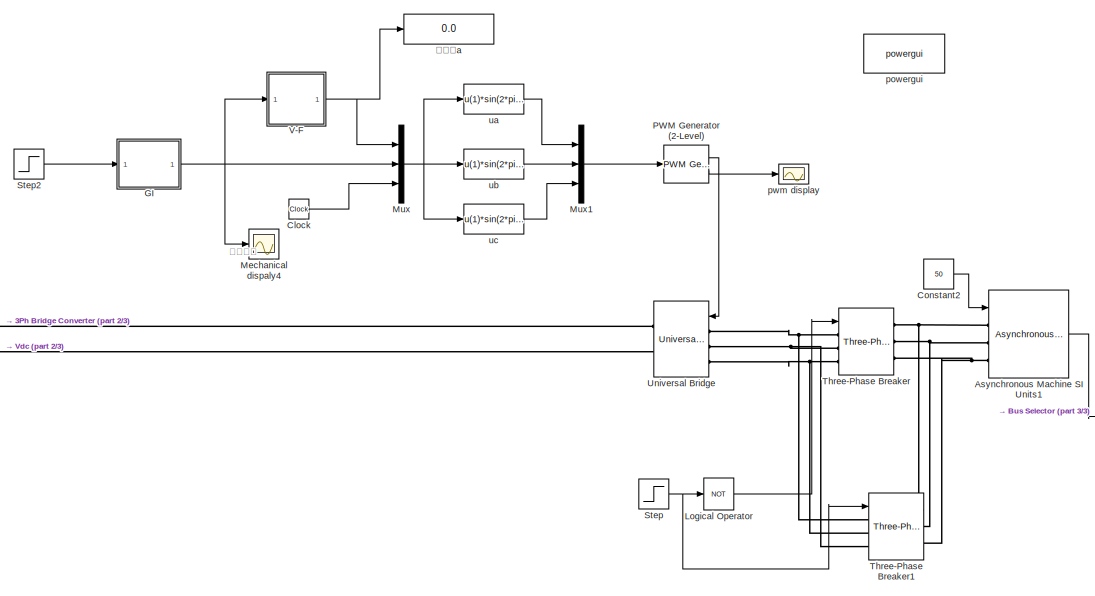
[diagram: root canvas - part 1/3, top center region]
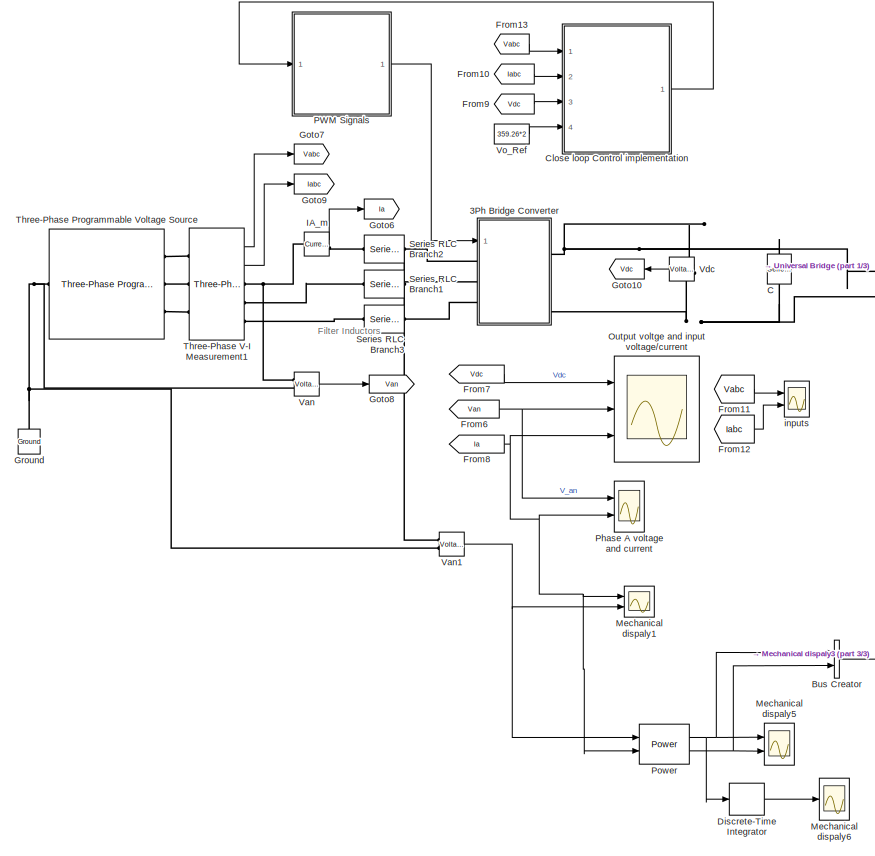
[diagram: root canvas - part 2/3, left side, full height]
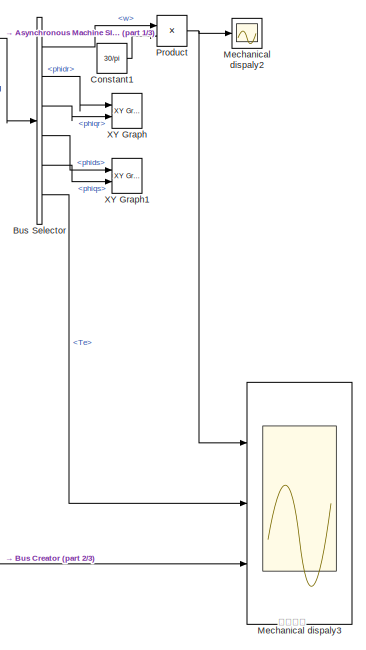
[diagram: root canvas - part 3/3, middle right region]
MODEL slx_5c9ccfc2b68f
KIND model
CONFIG AbsTol = auto
CONFIG EnableMultiTasking = off
CONFIG FixedStep = auto
CONFIG MaxStep = auto
CONFIG MinStep = auto
CONFIG RelTol = 1e-3
CONFIG SampleTimeConstraint = Unconstrained
CONFIG Solver = ode23t
CONFIG SolverName = ode23t
CONFIG StartTime = 0.0
CONFIG StopTime = 3
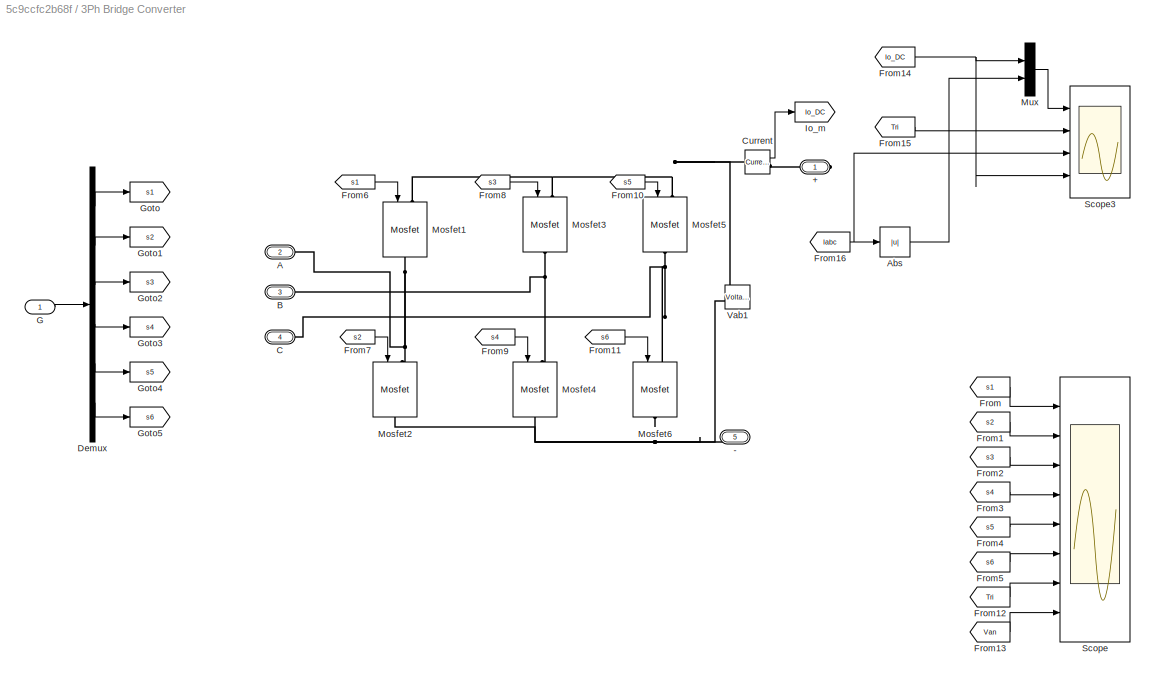
BLOCK [SubSystem] 3Ph Bridge Converter
  Ports = [1, 0, 0, 0, 0, 3, 2]
  RequestExecContextInheritance = off
  Variant = off
BLOCK [PMIOPort] 3Ph Bridge Converter/+
  Port = 1
  Side = Right
BLOCK [PMIOPort] 3Ph Bridge Converter/-
  Port = 5
  Side = Right
BLOCK [PMIOPort] 3Ph Bridge Converter/A
  Port = 2
  Side = Left
BLOCK [Abs] 3Ph Bridge Converter/Abs
  SaturateOnIntegerOverflow = off
BLOCK [PMIOPort] 3Ph Bridge Converter/B
  Port = 3
  Side = Left
BLOCK [PMIOPort] 3Ph Bridge Converter/C
  Port = 4
  Side = Left
BLOCK [Reference] 3Ph Bridge Converter/Current  REF=powerlib/Measurements/Current Measurement
  Ports = [0, 1, 0, 0, 0, 1, 1]
  SourceBlock = powerlib/Measurements/Current Measurement
  SourceProductBaseCode = PS
  SourceProductName = Simscape Power Systems
  SourceType = Current Measurement
BLOCK [Demux] 3Ph Bridge Converter/Demux
  DisplayOption = bar
  Outputs = 6
  Ports = [1, 6]
BLOCK [From] 3Ph Bridge Converter/From
  GotoTag = s1
BLOCK [From] 3Ph Bridge Converter/From1
  GotoTag = s2
BLOCK [From] 3Ph Bridge Converter/From10
  CloseFcn = tagdialog Close
  GotoTag = s5
BLOCK [From] 3Ph Bridge Converter/From11
  CloseFcn = tagdialog Close
  GotoTag = s6
BLOCK [From] 3Ph Bridge Converter/From12
  GotoTag = Tri
  TagVisibility = global
BLOCK [From] 3Ph Bridge Converter/From13
  GotoTag = Van
  TagVisibility = global
BLOCK [From] 3Ph Bridge Converter/From14
  GotoTag = Io_DC
BLOCK [From] 3Ph Bridge Converter/From15
  GotoTag = Tri
  TagVisibility = global
BLOCK [From] 3Ph Bridge Converter/From16
  GotoTag = Iabc
  TagVisibility = global
BLOCK [From] 3Ph Bridge Converter/From2
  GotoTag = s3
BLOCK [From] 3Ph Bridge Converter/From3
  GotoTag = s4
BLOCK [From] 3Ph Bridge Converter/From4
  GotoTag = s5
BLOCK [From] 3Ph Bridge Converter/From5
  GotoTag = s6
BLOCK [From] 3Ph Bridge Converter/From6
  CloseFcn = tagdialog Close
  GotoTag = s1
BLOCK [From] 3Ph Bridge Converter/From7
  CloseFcn = tagdialog Close
  GotoTag = s2
BLOCK [From] 3Ph Bridge Converter/From8
  CloseFcn = tagdialog Close
  GotoTag = s3
BLOCK [From] 3Ph Bridge Converter/From9
  CloseFcn = tagdialog Close
  GotoTag = s4
BLOCK [Inport] 3Ph Bridge Converter/G
  IconDisplay = Port number
BLOCK [Goto] 3Ph Bridge Converter/Goto
  GotoTag = s1
BLOCK [Goto] 3Ph Bridge Converter/Goto1
  GotoTag = s2
BLOCK [Goto] 3Ph Bridge Converter/Goto2
  GotoTag = s3
BLOCK [Goto] 3Ph Bridge Converter/Goto3
  GotoTag = s4
BLOCK [Goto] 3Ph Bridge Converter/Goto4
  GotoTag = s5
BLOCK [Goto] 3Ph Bridge Converter/Goto5
  GotoTag = s6
BLOCK [Goto] 3Ph Bridge Converter/Io_m
  GotoTag = Io_DC
BLOCK [Reference] 3Ph Bridge Converter/Mosfet1  REF=powerlib/Power
Electronics/Mosfet
  Ports = [1, 0, 0, 0, 0, 1, 1]
  SourceBlock = powerlib/Power\nElectronics/Mosfet
  SourceProductBaseCode = PS
  SourceProductName = Simscape Power Systems
  SourceType = Mosfet
BLOCK [Reference] 3Ph Bridge Converter/Mosfet2  REF=powerlib/Power
Electronics/Mosfet
  Ports = [1, 0, 0, 0, 0, 1, 1]
  SourceBlock = powerlib/Power\nElectronics/Mosfet
  SourceProductBaseCode = PS
  SourceProductName = Simscape Power Systems
  SourceType = Mosfet
BLOCK [Reference] 3Ph Bridge Converter/Mosfet3  REF=powerlib/Power
Electronics/Mosfet
  Ports = [1, 0, 0, 0, 0, 1, 1]
  SourceBlock = powerlib/Power\nElectronics/Mosfet
  SourceProductBaseCode = PS
  SourceProductName = Simscape Power Systems
  SourceType = Mosfet
BLOCK [Reference] 3Ph Bridge Converter/Mosfet4  REF=powerlib/Power
Electronics/Mosfet
  Ports = [1, 0, 0, 0, 0, 1, 1]
  SourceBlock = powerlib/Power\nElectronics/Mosfet
  SourceProductBaseCode = PS
  SourceProductName = Simscape Power Systems
  SourceType = Mosfet
BLOCK [Reference] 3Ph Bridge Converter/Mosfet5  REF=powerlib/Power
Electronics/Mosfet
  Ports = [1, 0, 0, 0, 0, 1, 1]
  SourceBlock = powerlib/Power\nElectronics/Mosfet
  SourceProductBaseCode = PS
  SourceProductName = Simscape Power Systems
  SourceType = Mosfet
BLOCK [Reference] 3Ph Bridge Converter/Mosfet6  REF=powerlib/Power
Electronics/Mosfet
  Ports = [1, 0, 0, 0, 0, 1, 1]
  SourceBlock = powerlib/Power\nElectronics/Mosfet
  SourceProductBaseCode = PS
  SourceProductName = Simscape Power Systems
  SourceType = Mosfet
BLOCK [Mux] 3Ph Bridge Converter/Mux
  DisplayOption = bar
  Inputs = 2
  Ports = [2, 1]
BLOCK [Scope] 3Ph Bridge Converter/Scope
  NumInputPorts = 8
  Ports = [8]
  ScopeSpecificationString = Simulink.scopes.TimeScopeBlockCfg('CurrentConfiguration', extmgr.ConfigurationSet(extmgr.Configuration('Core','General UI',true,'FigureColor',[0.156862745098039 0.156862745098039 0.156862745098039]),extmgr.Configuration('Core','Source UI',true),extmgr.Configuration('Sources','WiredSimulink',true,'DataLoggingVariableName','ScopeData6','DataLoggingSaveFormat','StructureWithTime','DataLoggingMaxPoint...<+11340ch>
BLOCK [Scope] 3Ph Bridge Converter/Scope3
  NumInputPorts = 4
  Ports = [4]
  ScopeSpecificationString = Simulink.scopes.TimeScopeBlockCfg('CurrentConfiguration', extmgr.ConfigurationSet(extmgr.Configuration('Core','General UI',true,'FigureColor',[0.156862745098039 0.156862745098039 0.156862745098039]),extmgr.Configuration('Core','Source UI',true),extmgr.Configuration('Sources','WiredSimulink',true,'DataLoggingVariableName','ScopeData10','DataLoggingSaveFormat','StructureWithTime','DataLoggingMaxPoin...<+6565ch>
BLOCK [Reference] 3Ph Bridge Converter/Vab1  REF=powerlib/Measurements/Voltage Measurement
  AttributesFormatString = \n
  Ports = [0, 1, 0, 0, 0, 2]
  SourceBlock = powerlib/Measurements/Voltage Measurement
  SourceProductBaseCode = PS
  SourceProductName = Simscape Power Systems
  SourceType = Voltage Measurement
  Tag = PoWeRsYsTeMmEaSuReMeNt
BLOCK [Reference] Asynchronous Machine SI Units1  REF=powerlib/Machines/Asynchronous Machine
SI Units
  AttributesFormatString = \n
  Ports = [1, 1, 0, 0, 0, 3]
  SourceBlock = powerlib/Machines/Asynchronous Machine\nSI Units
  SourceProductBaseCode = PS
  SourceProductName = Simscape Power Systems
  SourceType = Asynchronous Machine
BLOCK [BusCreator] Bus Creator
  DisplayOption = bar
  InheritFromInputs = on
  Inputs = 2
  Ports = [2, 1]
BLOCK [BusSelector] Bus Selector
  OutputAsBus = off
  OutputSignals = w,phidr,phiqr,phids,phiqs,Te
  Ports = [1, 6]
BLOCK [Reference] C  REF=powerlib/Elements/Series RLC Branch
  Ports = [0, 0, 0, 0, 0, 1, 1]
  SourceBlock = powerlib/Elements/Series RLC Branch
  SourceProductBaseCode = PS
  SourceProductName = Simscape Power Systems
  SourceType = Series RLC Branch
BLOCK [Clock] Clock
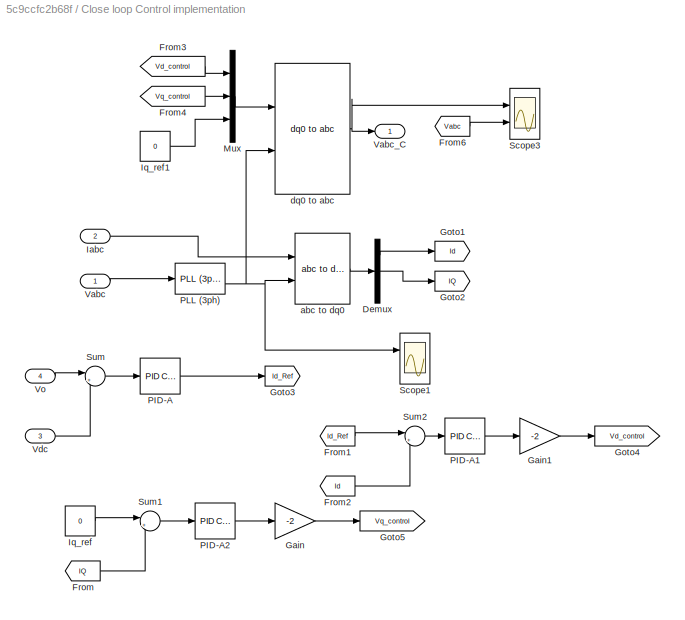
BLOCK [SubSystem] Close loop Control implementation
  Ports = [4, 1]
  RequestExecContextInheritance = off
  Variant = off
BLOCK [Demux] Close loop Control implementation/Demux
  DisplayOption = bar
  Outputs = 3
  Ports = [1, 3]
BLOCK [From] Close loop Control implementation/From
  GotoTag = IQ
  TagVisibility = global
BLOCK [From] Close loop Control implementation/From1
  GotoTag = Id_Ref
  TagVisibility = global
BLOCK [From] Close loop Control implementation/From2
  GotoTag = Id
  TagVisibility = global
BLOCK [From] Close loop Control implementation/From3
  GotoTag = Vd_control
  TagVisibility = global
BLOCK [From] Close loop Control implementation/From4
  GotoTag = Vq_control
  TagVisibility = global
BLOCK [From] Close loop Control implementation/From6
  GotoTag = Vabc
  TagVisibility = global
BLOCK [Gain] Close loop Control implementation/Gain
  Gain = -2
  OutDataTypeStr = Inherit: Inherit via internal rule
  ParamDataTypeStr = Inherit: Inherit via internal rule
  SaturateOnIntegerOverflow = off
BLOCK [Gain] Close loop Control implementation/Gain1
  Gain = -2
  OutDataTypeStr = Inherit: Inherit via internal rule
  ParamDataTypeStr = Inherit: Inherit via internal rule
  SaturateOnIntegerOverflow = off
BLOCK [Goto] Close loop Control implementation/Goto1
  GotoTag = Id
  TagVisibility = global
BLOCK [Goto] Close loop Control implementation/Goto2
  GotoTag = IQ
  TagVisibility = global
BLOCK [Goto] Close loop Control implementation/Goto3
  GotoTag = Id_Ref
  TagVisibility = global
BLOCK [Goto] Close loop Control implementation/Goto4
  GotoTag = Vd_control
  TagVisibility = global
BLOCK [Goto] Close loop Control implementation/Goto5
  GotoTag = Vq_control
  TagVisibility = global
BLOCK [Inport] Close loop Control implementation/Iabc
  IconDisplay = Port number
  Port = 2
BLOCK [Constant] Close loop Control implementation/Iq_ref
  Value = 0
BLOCK [Constant] Close loop Control implementation/Iq_ref1
  Value = 0
BLOCK [Mux] Close loop Control implementation/Mux
  DisplayOption = bar
  Inputs = 3
  Ports = [3, 1]
BLOCK [Reference] Close loop Control implementation/PID-A  REF=simulink/Continuous/PID Controller
  Ports = [1, 1]
  SourceBlock = simulink/Continuous/PID Controller
  SourceProductBaseCode = SL
  SourceProductName = Simulink
  SourceType = PID 1dof
BLOCK [Reference] Close loop Control implementation/PID-A1  REF=simulink/Continuous/PID Controller
  Ports = [1, 1]
  SourceBlock = simulink/Continuous/PID Controller
  SourceProductBaseCode = SL
  SourceProductName = Simulink
  SourceType = PID 1dof
BLOCK [Reference] Close loop Control implementation/PID-A2  REF=simulink/Continuous/PID Controller
  Ports = [1, 1]
  SourceBlock = simulink/Continuous/PID Controller
  SourceProductBaseCode = SL
  SourceProductName = Simulink
  SourceType = PID 1dof
BLOCK [Reference] Close loop Control implementation/PLL (3ph)  REF=powerlib_meascontrol/PLL/PLL
(3ph)
  Ports = [1, 2]
  SourceBlock = powerlib_meascontrol/PLL/PLL\n(3ph)
  SourceProductBaseCode = PS
  SourceProductName = Simscape Power Systems
  SourceType = PLL (3ph)
BLOCK [Scope] Close loop Control implementation/Scope1
  NumInputPorts = 2
  Ports = [2]
  ScopeSpecificationString = Simulink.scopes.TimeScopeBlockCfg('CurrentConfiguration', extmgr.ConfigurationSet(extmgr.Configuration('Core','General UI',true,'FigureColor',[0.156862745098039 0.156862745098039 0.156862745098039]),extmgr.Configuration('Core','Source UI',true),extmgr.Configuration('Sources','WiredSimulink',true,'DataLogging',true,'DataLoggingVariableName','ScopeData5','DataLoggingSaveFormat','StructureWithTime','...<+4056ch>
BLOCK [Scope] Close loop Control implementation/Scope3
  NumInputPorts = 2
  Ports = [2]
  ScopeSpecificationString = Simulink.scopes.TimeScopeBlockCfg('CurrentConfiguration', extmgr.ConfigurationSet(extmgr.Configuration('Core','General UI',true,'FigureColor',[0.156862745098039 0.156862745098039 0.156862745098039]),extmgr.Configuration('Core','Source UI',true),extmgr.Configuration('Sources','WiredSimulink',true,'DataLogging',true,'DataLoggingVariableName','ScopeData4','DataLoggingSaveFormat','StructureWithTime','...<+4060ch>
BLOCK [Sum] Close loop Control implementation/Sum
  IconShape = round
  InputSameDT = off
  Inputs = |+-
  OutDataTypeStr = Inherit: Inherit via internal rule
  Ports = [2, 1]
  SaturateOnIntegerOverflow = off
BLOCK [Sum] Close loop Control implementation/Sum1
  IconShape = round
  InputSameDT = off
  Inputs = |+-
  OutDataTypeStr = Inherit: Inherit via internal rule
  Ports = [2, 1]
  SaturateOnIntegerOverflow = off
BLOCK [Sum] Close loop Control implementation/Sum2
  IconShape = round
  InputSameDT = off
  Inputs = |+-
  OutDataTypeStr = Inherit: Inherit via internal rule
  Ports = [2, 1]
  SaturateOnIntegerOverflow = off
BLOCK [Inport] Close loop Control implementation/Vabc
  IconDisplay = Port number
BLOCK [Outport] Close loop Control implementation/Vabc_C
  IconDisplay = Port number
BLOCK [Inport] Close loop Control implementation/Vdc
  IconDisplay = Port number
  Port = 3
BLOCK [Inport] Close loop Control implementation/Vo
  IconDisplay = Port number
  Port = 4
BLOCK [Reference] Close loop Control implementation/abc to dq0  REF=powerlib_meascontrol/Transformations/abc to dq0
  Ports = [2, 1]
  SourceBlock = powerlib_meascontrol/Transformations/abc to dq0
  SourceProductBaseCode = PS
  SourceProductName = Simscape Power Systems
  SourceType = abc to dq0 Transformation
BLOCK [Reference] Close loop Control implementation/dq0 to abc  REF=powerlib_meascontrol/Transformations/dq0 to abc
  Ports = [2, 1]
  SourceBlock = powerlib_meascontrol/Transformations/dq0 to abc
  SourceProductBaseCode = PS
  SourceProductName = Simscape Power Systems
  SourceType = dq0 to abc Transformation
BLOCK [Constant] Constant1
  Value = 30/pi
BLOCK [Constant] Constant2
  Value = 50
BLOCK [DiscreteIntegrator] Discrete-Time Integrator
  ICPrevOutput = DiscIntNeverNeededParam
  ICPrevScaledInput = DiscIntNeverNeededParam
  InitialConditionSetting = State (most efficient)
  Ports = [1, 1]
  SampleTime = -1
BLOCK [From] From10
  GotoTag = Iabc
  TagVisibility = global
BLOCK [From] From11
  GotoTag = Vabc
  TagVisibility = global
BLOCK [From] From12
  GotoTag = Iabc
  TagVisibility = global
BLOCK [From] From13
  GotoTag = Vabc
  TagVisibility = global
BLOCK [From] From6
  GotoTag = Van
  TagVisibility = global
BLOCK [From] From7
  GotoTag = Vdc
  TagVisibility = global
BLOCK [From] From8
  GotoTag = Ia
  TagVisibility = global
BLOCK [From] From9
  GotoTag = Vdc
  TagVisibility = global
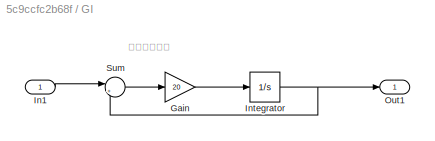
BLOCK [SubSystem] GI
  Ports = [1, 1]
  RequestExecContextInheritance = off
  Variant = off
BLOCK [Gain] GI/Gain
  Gain = 20
  OutDataTypeStr = Inherit: Inherit via internal rule
  ParamDataTypeStr = Inherit: Inherit via internal rule
  SaturateOnIntegerOverflow = off
BLOCK [Inport] GI/In1
  IconDisplay = Port number
BLOCK [Integrator] GI/Integrator
  Ports = [1, 1]
BLOCK [Outport] GI/Out1
  IconDisplay = Port number
BLOCK [Sum] GI/Sum
  IconShape = round
  InputSameDT = off
  Inputs = |+-
  OutDataTypeStr = Inherit: Inherit via internal rule
  Ports = [2, 1]
  SaturateOnIntegerOverflow = off
BLOCK [Goto] Goto10
  GotoTag = Vdc
  TagVisibility = global
BLOCK [Goto] Goto6
  GotoTag = Ia
  TagVisibility = global
BLOCK [Goto] Goto7
  GotoTag = Vabc
  TagVisibility = global
BLOCK [Goto] Goto8
  GotoTag = Van
  TagVisibility = global
BLOCK [Goto] Goto9
  GotoTag = Iabc
  TagVisibility = global
BLOCK [Reference] Ground  REF=powerlib/Elements/Ground
  Ports = [0, 0, 0, 0, 0, 1]
  SourceBlock = powerlib/Elements/Ground
  SourceProductBaseCode = PS
  SourceProductName = Simscape Power Systems
  SourceType = Ground
BLOCK [Reference] IA_m  REF=powerlib/Measurements/Current Measurement
  Ports = [0, 1, 0, 0, 0, 1, 1]
  SourceBlock = powerlib/Measurements/Current Measurement
  SourceProductBaseCode = PS
  SourceProductName = Simscape Power Systems
  SourceType = Current Measurement
BLOCK [Logic] Logical Operator
  AllPortsSameDT = off
  Operator = NOT
  OutDataTypeStr = boolean
  Ports = [1, 1]
BLOCK [Scope] Mechanical dispaly1
  NumInputPorts = 2
  Ports = [2]
  ScopeSpecificationString = Simulink.scopes.TimeScopeBlockCfg('CurrentConfiguration', extmgr.ConfigurationSet(extmgr.Configuration('Core','General UI',true),extmgr.Configuration('Core','Source UI',true),extmgr.Configuration('Sources','WiredSimulink',true,'DataLoggingVariableName','ScopeData1','DataLoggingSaveFormat','StructureWithTime','DataLoggingDecimation','1','DataLoggingDecimateData',true),extmgr.Configuration('Visuals'...<+1700ch>
BLOCK [Scope] Mechanical dispaly2
  NumInputPorts = 1
  Ports = [1]
  ScopeSpecificationString = Simulink.scopes.TimeScopeBlockCfg('CurrentConfiguration', extmgr.ConfigurationSet(extmgr.Configuration('Core','General UI',true),extmgr.Configuration('Core','Source UI',true),extmgr.Configuration('Sources','WiredSimulink',true,'DataLoggingVariableName','ScopeData1','DataLoggingSaveFormat','StructureWithTime','DataLoggingDecimation','1','DataLoggingDecimateData',true),extmgr.Configuration('Visuals'...<+2212ch>
BLOCK [Scope] Mechanical dispaly3
  NumInputPorts = 3
  Ports = [3]
  ScopeSpecificationString = Simulink.scopes.TimeScopeBlockCfg('CurrentConfiguration', extmgr.ConfigurationSet(extmgr.Configuration('Core','General UI',true,'FigureColor',[1 1 1]),extmgr.Configuration('Core','Source UI',true),extmgr.Configuration('Sources','WiredSimulink',true,'DataLoggingVariableName','ScopeData1','DataLoggingSaveFormat','StructureWithTime','DataLoggingDecimation','1','DataLoggingDecimateData',true),extmgr.C...<+4263ch>
BLOCK [Scope] Mechanical dispaly4
  NumInputPorts = 1
  Ports = [1]
  ScopeSpecificationString = Simulink.scopes.TimeScopeBlockCfg('CurrentConfiguration', extmgr.ConfigurationSet(extmgr.Configuration('Core','General UI',true),extmgr.Configuration('Core','Source UI',true),extmgr.Configuration('Sources','WiredSimulink',true,'DataLoggingVariableName','ScopeData3','DataLoggingSaveFormat','StructureWithTime','DataLoggingDecimation','1','DataLoggingDecimateData',true),extmgr.Configuration('Visuals'...<+1713ch>
BLOCK [Scope] Mechanical dispaly5
  NumInputPorts = 2
  Ports = [2]
  ScopeSpecificationString = Simulink.scopes.TimeScopeBlockCfg('CurrentConfiguration', extmgr.ConfigurationSet(extmgr.Configuration('Core','General UI',true),extmgr.Configuration('Core','Source UI',true),extmgr.Configuration('Sources','WiredSimulink',true,'DataLoggingVariableName','ScopeData2','DataLoggingSaveFormat','StructureWithTime','DataLoggingDecimation','1','DataLoggingDecimateData',true),extmgr.Configuration('Visuals'...<+2034ch>
BLOCK [Scope] Mechanical dispaly6
  NumInputPorts = 1
  Ports = [1]
  ScopeSpecificationString = Simulink.scopes.TimeScopeBlockCfg('CurrentConfiguration', extmgr.ConfigurationSet(extmgr.Configuration('Core','General UI',true),extmgr.Configuration('Core','Source UI',true),extmgr.Configuration('Sources','WiredSimulink',true,'DataLoggingVariableName','ScopeData3','DataLoggingSaveFormat','StructureWithTime','DataLoggingDecimation','1','DataLoggingDecimateData',true),extmgr.Configuration('Visuals'...<+1793ch>
BLOCK [Mux] Mux
  DisplayOption = bar
  Inputs = 3
  Ports = [3, 1]
BLOCK [Mux] Mux1
  DisplayOption = bar
  Inputs = 3
  Ports = [3, 1]
BLOCK [Scope] Output voltge and input voltage//current
  NumInputPorts = 3
  Ports = [3]
  ScopeSpecificationString = Simulink.scopes.TimeScopeBlockCfg('CurrentConfiguration', extmgr.ConfigurationSet(extmgr.Configuration('Core','General UI',true,'FigureColor',[1 1 1]),extmgr.Configuration('Core','Source UI',true),extmgr.Configuration('Sources','WiredSimulink',true,'DataLoggingDecimation','1','DataLoggingDecimateData',true,'DataLoggingSaveFormat','StructureWithTime','DataLoggingMaxPoints','1000000','DataLoggingVar...<+5486ch>
BLOCK [Reference] PWM Generator (2-Level)  REF=powerlib_meascontrol/Pulse & Signal
Generators/PWM Generator
(2-Level)
  Ports = [1, 2]
  SourceBlock = powerlib_meascontrol/Pulse & Signal\nGenerators/PWM Generator\n(2-Level)
  SourceProductBaseCode = PS
  SourceProductName = Simscape Power Systems
  SourceType = PWM Generator (2-Level)
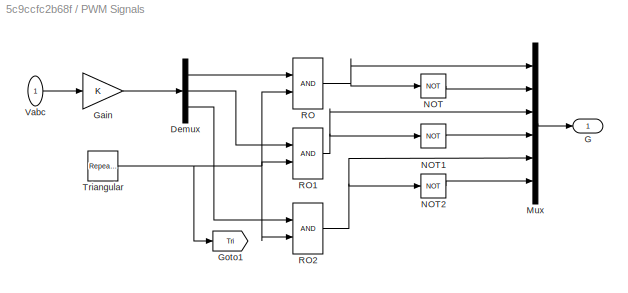
BLOCK [SubSystem] PWM Signals
  Ports = [1, 1]
  RequestExecContextInheritance = off
  Variant = off
BLOCK [Demux] PWM Signals/Demux
  DisplayOption = bar
  Outputs = 3
  Ports = [1, 3]
BLOCK [Outport] PWM Signals/G
  IconDisplay = Port number
BLOCK [Gain] PWM Signals/Gain
  OutDataTypeStr = Inherit: Inherit via internal rule
  ParamDataTypeStr = Inherit: Inherit via internal rule
  SaturateOnIntegerOverflow = off
BLOCK [Goto] PWM Signals/Goto1
  GotoTag = Tri
  TagVisibility = global
BLOCK [Mux] PWM Signals/Mux
  DisplayOption = bar
  Inputs = 6
  Ports = [6, 1]
BLOCK [Logic] PWM Signals/NOT
  AllPortsSameDT = off
  IconShape = distinctive
  Operator = NOT
  OutDataTypeStr = boolean
  Ports = [1, 1]
BLOCK [Logic] PWM Signals/NOT1
  AllPortsSameDT = off
  IconShape = distinctive
  Operator = NOT
  OutDataTypeStr = boolean
  Ports = [1, 1]
BLOCK [Logic] PWM Signals/NOT2
  AllPortsSameDT = off
  IconShape = distinctive
  Operator = NOT
  OutDataTypeStr = boolean
  Ports = [1, 1]
BLOCK [RelationalOperator] PWM Signals/RO
  InputSameDT = off
  OutDataTypeStr = boolean
  Ports = [2, 1]
BLOCK [RelationalOperator] PWM Signals/RO1
  InputSameDT = off
  OutDataTypeStr = boolean
  Ports = [2, 1]
BLOCK [RelationalOperator] PWM Signals/RO2
  InputSameDT = off
  OutDataTypeStr = boolean
  Ports = [2, 1]
BLOCK [Reference] PWM Signals/Triangular  REF=simulink/Sources/Repeating
Sequence
  Ports = [0, 1]
  SourceBlock = simulink/Sources/Repeating\nSequence
  SourceProductBaseCode = SL
  SourceProductName = Simulink
  SourceType = Repeating table
BLOCK [Inport] PWM Signals/Vabc
  IconDisplay = Port number
BLOCK [Scope] Phase A voltage and current
  NumInputPorts = 2
  Ports = [2]
  ScopeSpecificationString = Simulink.scopes.TimeScopeBlockCfg('CurrentConfiguration', extmgr.ConfigurationSet(extmgr.Configuration('Core','General UI',true),extmgr.Configuration('Core','Source UI',true),extmgr.Configuration('Sources','WiredSimulink',true,'DataLoggingVariableName','ScopeData4','DataLoggingDecimation','1','DataLoggingDecimateData',true,'DataLoggingSaveFormat','StructureWithTime','DataLoggingMaxPoints','1000000...<+2110ch>
BLOCK [Reference] Power  REF=powerlib_meascontrol/Measurements/Power
  Ports = [2, 2]
  SourceBlock = powerlib_meascontrol/Measurements/Power
  SourceProductBaseCode = PS
  SourceProductName = Simscape Power Systems
  SourceType = Power
BLOCK [Product] Product
  InputSameDT = off
  OutDataTypeStr = Inherit: Inherit via internal rule
  Ports = [2, 1]
  RndMeth = Floor
  SaturateOnIntegerOverflow = off
BLOCK [Reference] Series RLC Branch1  REF=powerlib/Elements/Series RLC Branch
  Ports = [0, 0, 0, 0, 0, 1, 1]
  SourceBlock = powerlib/Elements/Series RLC Branch
  SourceProductBaseCode = PS
  SourceProductName = Simscape Power Systems
  SourceType = Series RLC Branch
BLOCK [Reference] Series RLC Branch2  REF=powerlib/Elements/Series RLC Branch
  Ports = [0, 0, 0, 0, 0, 1, 1]
  SourceBlock = powerlib/Elements/Series RLC Branch
  SourceProductBaseCode = PS
  SourceProductName = Simscape Power Systems
  SourceType = Series RLC Branch
BLOCK [Reference] Series RLC Branch3  REF=powerlib/Elements/Series RLC Branch
  Ports = [0, 0, 0, 0, 0, 1, 1]
  SourceBlock = powerlib/Elements/Series RLC Branch
  SourceProductBaseCode = PS
  SourceProductName = Simscape Power Systems
  SourceType = Series RLC Branch
BLOCK [Step] Step
  After = 0
  SampleTime = 0
  Time = 0
BLOCK [Step] Step2
  After = 40
  Before = 40
  SampleTime = 0
  Time = 1.5
BLOCK [Reference] Three-Phase Breaker  REF=powerlib/Elements/Three-Phase Breaker
  Ports = [1, 0, 0, 0, 0, 3, 3]
  SourceBlock = powerlib/Elements/Three-Phase Breaker
  SourceProductBaseCode = PS
  SourceProductName = Simscape Power Systems
  SourceType = Three-Phase Breaker
BLOCK [Reference] Three-Phase Breaker1  REF=powerlib/Elements/Three-Phase Breaker
  Ports = [1, 0, 0, 0, 0, 3, 3]
  SourceBlock = powerlib/Elements/Three-Phase Breaker
  SourceProductBaseCode = PS
  SourceProductName = Simscape Power Systems
  SourceType = Three-Phase Breaker
BLOCK [Reference] Three-Phase Programmable Voltage Source  REF=powerlib/Electrical
Sources/Three-Phase
Programmable
Voltage Source
  Ports = [0, 0, 0, 0, 0, 1, 3]
  SourceBlock = powerlib/Electrical\nSources/Three-Phase\nProgrammable\nVoltage Source
  SourceProductBaseCode = PS
  SourceProductName = Simscape Power Systems
  SourceType = Three-Phase Programmable Voltage Source
BLOCK [Reference] Three-Phase V-I Measurement1  REF=powerlib/Measurements/Three-Phase
V-I Measurement
  Ports = [0, 2, 0, 0, 0, 3, 3]
  SourceBlock = powerlib/Measurements/Three-Phase\nV-I Measurement
  SourceProductBaseCode = PS
  SourceProductName = Simscape Power Systems
  SourceType = Three-Phase VI Measurement
BLOCK [Reference] Universal Bridge  REF=powerlib/Power
Electronics/Universal Bridge
  Ports = [1, 0, 0, 0, 0, 3, 2]
  SourceBlock = powerlib/Power\nElectronics/Universal Bridge
  SourceProductBaseCode = PS
  SourceProductName = Simscape Power Systems
  SourceType = Universal Bridge
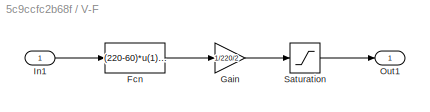
BLOCK [SubSystem] V-F
  Ports = [1, 1]
  RequestExecContextInheritance = off
  Variant = off
BLOCK [Fcn] V-F/Fcn
  Expr = (220-60)*u(1)/50+60
BLOCK [Gain] V-F/Gain
  Gain = 1/220/2
  OutDataTypeStr = Inherit: Inherit via internal rule
  ParamDataTypeStr = Inherit: Inherit via internal rule
  SaturateOnIntegerOverflow = off
BLOCK [Inport] V-F/In1
  IconDisplay = Port number
BLOCK [Outport] V-F/Out1
  IconDisplay = Port number
BLOCK [Saturate] V-F/Saturation
  InputPortMap = u0
  LowerLimit = -0.95
  Ports = [1, 1]
  UpperLimit = 0.95
BLOCK [Reference] Van  REF=powerlib/Measurements/Voltage Measurement
  AttributesFormatString = \n
  Ports = [0, 1, 0, 0, 0, 2]
  SourceBlock = powerlib/Measurements/Voltage Measurement
  SourceProductBaseCode = PS
  SourceProductName = Simscape Power Systems
  SourceType = Voltage Measurement
  Tag = PoWeRsYsTeMmEaSuReMeNt
BLOCK [Reference] Van1  REF=powerlib/Measurements/Voltage Measurement
  AttributesFormatString = \n
  Ports = [0, 1, 0, 0, 0, 2]
  SourceBlock = powerlib/Measurements/Voltage Measurement
  SourceProductBaseCode = PS
  SourceProductName = Simscape Power Systems
  SourceType = Voltage Measurement
  Tag = PoWeRsYsTeMmEaSuReMeNt
BLOCK [Reference] Vdc   REF=powerlib/Measurements/Voltage Measurement
  AttributesFormatString = \n
  Ports = [0, 1, 0, 0, 0, 2]
  SourceBlock = powerlib/Measurements/Voltage Measurement
  SourceProductBaseCode = PS
  SourceProductName = Simscape Power Systems
  SourceType = Voltage Measurement
  Tag = PoWeRsYsTeMmEaSuReMeNt
BLOCK [Constant] Vo_Ref
  Value = 359.26*2
BLOCK [Reference] XY Graph  REF=simulink/Sinks/XY Graph
  Ports = [2]
  SourceBlock = simulink/Sinks/XY Graph
  SourceProductBaseCode = SL
  SourceProductName = Simulink
  SourceType = XY scope.
BLOCK [Reference] XY Graph1  REF=simulink/Sinks/XY Graph
  Ports = [2]
  SourceBlock = simulink/Sinks/XY Graph
  SourceProductBaseCode = SL
  SourceProductName = Simulink
  SourceType = XY scope.
BLOCK [Scope] inputs
  NumInputPorts = 2
  Ports = [2]
  ScopeSpecificationString = Simulink.scopes.TimeScopeBlockCfg('CurrentConfiguration', extmgr.ConfigurationSet(extmgr.Configuration('Core','General UI',true),extmgr.Configuration('Core','Source UI',true),extmgr.Configuration('Sources','WiredSimulink',true,'DataLoggingVariableName','ScopeData5','DataLoggingDecimation','1','DataLoggingDecimateData',true,'DataLoggingSaveFormat','StructureWithTime','DataLoggingMaxPoints','1000000...<+4073ch>
BLOCK [Reference] powergui  REF=powerlib/powergui
  Ports = []
  Priority = 1
  SourceBlock = powerlib/powergui
  SourceProductBaseCode = PS
  SourceProductName = Simscape Power Systems
  SourceType = PSB option menu block
BLOCK [Scope] pwm display
  NumInputPorts = 1
  Ports = [1]
  ScopeSpecificationString = Simulink.scopes.TimeScopeBlockCfg('CurrentConfiguration', extmgr.ConfigurationSet(extmgr.Configuration('Core','General UI',true),extmgr.Configuration('Core','Source UI',true),extmgr.Configuration('Sources','WiredSimulink',true,'DataLoggingSaveFormat','StructureWithTime','DataLoggingDecimation','1','DataLoggingDecimateData',true),extmgr.Configuration('Visuals','Time Domain',true,'SerializedDisplays...<+1771ch>
BLOCK [Fcn] ua
  Expr = u(1)*sin(2*pi*u(2)*u(3))
BLOCK [Fcn] ub
  Expr = u(1)*sin(2*pi*u(2)*u(3)-2*pi/3)
BLOCK [Fcn] uc
  Expr = u(1)*sin(2*pi*u(2)*u(3)-4*pi/3)
BLOCK [Display] 调制度a
  Decimation = 1
  Ports = [1]
ANNOTATION (root): 有功无功
ANNOTATION (root): Filter Inductors
ANNOTATION (root): 升频曲线
ANNOTATION GI: 控制上升速度
LINE 3Ph Bridge Converter/Abs:1 -> 3Ph Bridge Converter/Mux:2
LINE 3Ph Bridge Converter/Current:1 -> 3Ph Bridge Converter/Io_m:1
LINE 3Ph Bridge Converter/Demux:1 -> 3Ph Bridge Converter/Goto:1
LINE 3Ph Bridge Converter/Demux:2 -> 3Ph Bridge Converter/Goto1:1
LINE 3Ph Bridge Converter/Demux:3 -> 3Ph Bridge Converter/Goto2:1
LINE 3Ph Bridge Converter/Demux:4 -> 3Ph Bridge Converter/Goto3:1
LINE 3Ph Bridge Converter/Demux:5 -> 3Ph Bridge Converter/Goto4:1
LINE 3Ph Bridge Converter/Demux:6 -> 3Ph Bridge Converter/Goto5:1
LINE 3Ph Bridge Converter/From10:1 -> 3Ph Bridge Converter/Mosfet5:1
LINE 3Ph Bridge Converter/From11:1 -> 3Ph Bridge Converter/Mosfet6:1
LINE 3Ph Bridge Converter/From12:1 -> 3Ph Bridge Converter/Scope:7
LINE 3Ph Bridge Converter/From13:1 -> 3Ph Bridge Converter/Scope:8
NET 3Ph Bridge Converter/From14:1 -> 3Ph Bridge Converter/Mux:1, 3Ph Bridge Converter/Scope3:4
LINE 3Ph Bridge Converter/From15:1 -> 3Ph Bridge Converter/Scope3:2
NET 3Ph Bridge Converter/From16:1 -> 3Ph Bridge Converter/Abs:1, 3Ph Bridge Converter/Scope3:3
LINE 3Ph Bridge Converter/From1:1 -> 3Ph Bridge Converter/Scope:2
LINE 3Ph Bridge Converter/From2:1 -> 3Ph Bridge Converter/Scope:3
LINE 3Ph Bridge Converter/From3:1 -> 3Ph Bridge Converter/Scope:4
LINE 3Ph Bridge Converter/From4:1 -> 3Ph Bridge Converter/Scope:5
LINE 3Ph Bridge Converter/From5:1 -> 3Ph Bridge Converter/Scope:6
LINE 3Ph Bridge Converter/From6:1 -> 3Ph Bridge Converter/Mosfet1:1
LINE 3Ph Bridge Converter/From7:1 -> 3Ph Bridge Converter/Mosfet2:1
LINE 3Ph Bridge Converter/From8:1 -> 3Ph Bridge Converter/Mosfet3:1
LINE 3Ph Bridge Converter/From9:1 -> 3Ph Bridge Converter/Mosfet4:1
LINE 3Ph Bridge Converter/From:1 -> 3Ph Bridge Converter/Scope:1
LINE 3Ph Bridge Converter/G:1 -> 3Ph Bridge Converter/Demux:1
LINE 3Ph Bridge Converter/Mux:1 -> 3Ph Bridge Converter/Scope3:1
LINE Asynchronous Machine SI Units1:1 -> Bus Selector:1
LINE Bus Creator:1 -> Mechanical dispaly3:3
LINE Bus Selector:1 -> Product:1
LINE Bus Selector:2 -> XY Graph:1
LINE Bus Selector:3 -> XY Graph:2
LINE Bus Selector:4 -> XY Graph1:1
LINE Bus Selector:5 -> XY Graph1:2
LINE Bus Selector:6 -> Mechanical dispaly3:2
LINE Clock:1 -> Mux:3
LINE Close loop Control implementation/Demux:1 -> Close loop Control implementation/Goto1:1
LINE Close loop Control implementation/Demux:2 -> Close loop Control implementation/Goto2:1
LINE Close loop Control implementation/From1:1 -> Close loop Control implementation/Sum2:1
LINE Close loop Control implementation/From2:1 -> Close loop Control implementation/Sum2:2
LINE Close loop Control implementation/From3:1 -> Close loop Control implementation/Mux:1
LINE Close loop Control implementation/From4:1 -> Close loop Control implementation/Mux:2
LINE Close loop Control implementation/From6:1 -> Close loop Control implementation/Scope3:2
LINE Close loop Control implementation/From:1 -> Close loop Control implementation/Sum1:2
LINE Close loop Control implementation/Gain1:1 -> Close loop Control implementation/Goto4:1
LINE Close loop Control implementation/Gain:1 -> Close loop Control implementation/Goto5:1
LINE Close loop Control implementation/Iabc:1 -> Close loop Control implementation/abc to dq0:1
LINE Close loop Control implementation/Iq_ref1:1 -> Close loop Control implementation/Mux:3
LINE Close loop Control implementation/Iq_ref:1 -> Close loop Control implementation/Sum1:1
LINE Close loop Control implementation/Mux:1 -> Close loop Control implementation/dq0 to abc:1
LINE Close loop Control implementation/PID-A1:1 -> Close loop Control implementation/Gain1:1
LINE Close loop Control implementation/PID-A2:1 -> Close loop Control implementation/Gain:1
LINE Close loop Control implementation/PID-A:1 -> Close loop Control implementation/Goto3:1
NET Close loop Control implementation/PLL (3ph):2 -> Close loop Control implementation/Scope1:1, Close loop Control implementation/abc to dq0:2, Close loop Control implementation/dq0 to abc:2
LINE Close loop Control implementation/Sum1:1 -> Close loop Control implementation/PID-A2:1
LINE Close loop Control implementation/Sum2:1 -> Close loop Control implementation/PID-A1:1
LINE Close loop Control implementation/Sum:1 -> Close loop Control implementation/PID-A:1
LINE Close loop Control implementation/Vabc:1 -> Close loop Control implementation/PLL (3ph):1
LINE Close loop Control implementation/Vdc:1 -> Close loop Control implementation/Sum:2
LINE Close loop Control implementation/Vo:1 -> Close loop Control implementation/Sum:1
LINE Close loop Control implementation/abc to dq0:1 -> Close loop Control implementation/Demux:1
NET Close loop Control implementation/dq0 to abc:1 -> Close loop Control implementation/Scope3:1, Close loop Control implementation/Vabc_C:1
LINE Close loop Control implementation:1 -> PWM Signals:1
LINE Constant1:1 -> Product:2
LINE Constant2:1 -> Asynchronous Machine SI Units1:1
LINE Discrete-Time Integrator:1 -> Mechanical dispaly6:1
LINE From10:1 -> Close loop Control implementation:2
LINE From11:1 -> inputs:1
LINE From12:1 -> inputs:2
LINE From13:1 -> Close loop Control implementation:1
NET From6:1 -> Output voltge and input voltage//current:2, Phase A voltage and current:1
LINE From7:1 -> Output voltge and input voltage//current:1
NET From8:1 -> Mechanical dispaly1:1, Output voltge and input voltage//current:3, Phase A voltage and current:2, Power:2
LINE From9:1 -> Close loop Control implementation:3
LINE GI/Gain:1 -> GI/Integrator:1
LINE GI/In1:1 -> GI/Sum:1
NET GI/Integrator:1 -> GI/Out1:1, GI/Sum:2
LINE GI/Sum:1 -> GI/Gain:1
NET GI:1 -> Mechanical dispaly4:1, Mux:2, V-F:1
LINE IA_m:1 -> Goto6:1
LINE Logical Operator:1 -> Three-Phase Breaker:1
LINE Mux1:1 -> PWM Generator (2-Level):1
NET Mux:1 -> ua:1, ub:1, uc:1
LINE PWM Generator (2-Level):1 -> Universal Bridge:1
LINE PWM Generator (2-Level):2 -> pwm display:1
LINE PWM Signals/Demux:1 -> PWM Signals/RO:1
LINE PWM Signals/Demux:2 -> PWM Signals/RO1:1
LINE PWM Signals/Demux:3 -> PWM Signals/RO2:1
LINE PWM Signals/Gain:1 -> PWM Signals/Demux:1
LINE PWM Signals/Mux:1 -> PWM Signals/G:1
LINE PWM Signals/NOT1:1 -> PWM Signals/Mux:4
LINE PWM Signals/NOT2:1 -> PWM Signals/Mux:6
LINE PWM Signals/NOT:1 -> PWM Signals/Mux:2
NET PWM Signals/RO1:1 -> PWM Signals/Mux:3, PWM Signals/NOT1:1
NET PWM Signals/RO2:1 -> PWM Signals/Mux:5, PWM Signals/NOT2:1
NET PWM Signals/RO:1 -> PWM Signals/Mux:1, PWM Signals/NOT:1
NET PWM Signals/Triangular:1 -> PWM Signals/Goto1:1, PWM Signals/RO1:2, PWM Signals/RO2:2, PWM Signals/RO:2
LINE PWM Signals/Vabc:1 -> PWM Signals/Gain:1
LINE PWM Signals:1 -> 3Ph Bridge Converter:1
NET Power:1 -> Bus Creator:1, Discrete-Time Integrator:1, Mechanical dispaly5:1
NET Power:2 -> Bus Creator:2, Mechanical dispaly5:2
NET Product:1 -> Mechanical dispaly2:1, Mechanical dispaly3:1
LINE Step2:1 -> GI:1
NET Step:1 -> Logical Operator:1, Three-Phase Breaker1:1
LINE Three-Phase V-I Measurement1:1 -> Goto7:1
LINE Three-Phase V-I Measurement1:2 -> Goto9:1
LINE V-F/Fcn:1 -> V-F/Gain:1
LINE V-F/Gain:1 -> V-F/Saturation:1
LINE V-F/In1:1 -> V-F/Fcn:1
LINE V-F/Saturation:1 -> V-F/Out1:1
NET V-F:1 -> Mux:1, 调制度a:1
NET Van1:1 -> Mechanical dispaly1:2, Power:1
LINE Van:1 -> Goto8:1
LINE Vdc :1 -> Goto10:1
LINE Vo_Ref:1 -> Close loop Control implementation:4
LINE ua:1 -> Mux1:1
LINE ub:1 -> Mux1:2
LINE uc:1 -> Mux1:3
PLINE 3Ph Bridge Converter/+:RConn1 -- 3Ph Bridge Converter/Current:RConn1
PNET net1: 3Ph Bridge Converter/-:RConn1 -- 3Ph Bridge Converter/Mosfet2:RConn1 -- 3Ph Bridge Converter/Mosfet4:RConn1 -- 3Ph Bridge Converter/Mosfet6:RConn1 -- 3Ph Bridge Converter/Vab1:LConn2
PNET net2: 3Ph Bridge Converter/A:RConn1 -- 3Ph Bridge Converter/Mosfet1:RConn1 -- 3Ph Bridge Converter/Mosfet2:LConn1
PNET net3: 3Ph Bridge Converter/B:RConn1 -- 3Ph Bridge Converter/Mosfet3:RConn1 -- 3Ph Bridge Converter/Mosfet4:LConn1
PNET net4: 3Ph Bridge Converter/C:RConn1 -- 3Ph Bridge Converter/Mosfet5:RConn1 -- 3Ph Bridge Converter/Mosfet6:LConn1
PNET net5: 3Ph Bridge Converter/Current:LConn1 -- 3Ph Bridge Converter/Mosfet1:LConn1 -- 3Ph Bridge Converter/Mosfet3:LConn1 -- 3Ph Bridge Converter/Mosfet5:LConn1 -- 3Ph Bridge Converter/Vab1:LConn1
PNET net6: 3Ph Bridge Converter:LConn1 -- Series RLC Branch2:LConn1 -- Van1:LConn1
PLINE 3Ph Bridge Converter:LConn2 -- Series RLC Branch1:LConn1
PLINE 3Ph Bridge Converter:LConn3 -- Series RLC Branch3:LConn1
PNET net7: 3Ph Bridge Converter:RConn1 -- C:LConn1 -- Universal Bridge:RConn1 -- Vdc :LConn1
PNET net8: 3Ph Bridge Converter:RConn2 -- C:RConn1 -- Universal Bridge:RConn2 -- Vdc :LConn2
PNET net9: Asynchronous Machine SI Units1:LConn1 -- Three-Phase Breaker1:RConn1 -- Three-Phase Breaker:RConn1
PNET net10: Asynchronous Machine SI Units1:LConn2 -- Three-Phase Breaker1:RConn2 -- Three-Phase Breaker:RConn2
PNET net11: Asynchronous Machine SI Units1:LConn3 -- Three-Phase Breaker1:RConn3 -- Three-Phase Breaker:RConn3
PNET net12: Ground:LConn1 -- Three-Phase Programmable Voltage Source:LConn1 -- Van1:LConn2 -- Van:LConn2
PNET net13: IA_m:LConn1 -- Three-Phase V-I Measurement1:RConn1 -- Van:LConn1
PLINE IA_m:RConn1 -- Series RLC Branch2:RConn1
PLINE Series RLC Branch1:RConn1 -- Three-Phase V-I Measurement1:RConn2
PLINE Series RLC Branch3:RConn1 -- Three-Phase V-I Measurement1:RConn3
PNET net14: Three-Phase Breaker1:LConn1 -- Three-Phase Breaker:LConn1 -- Universal Bridge:LConn1
PNET net15: Three-Phase Breaker1:LConn2 -- Three-Phase Breaker:LConn3 -- Universal Bridge:LConn3
PNET net16: Three-Phase Breaker1:LConn3 -- Three-Phase Breaker:LConn2 -- Universal Bridge:LConn2
PLINE Three-Phase Programmable Voltage Source:RConn1 -- Three-Phase V-I Measurement1:LConn1
PLINE Three-Phase Programmable Voltage Source:RConn2 -- Three-Phase V-I Measurement1:LConn2
PLINE Three-Phase Programmable Voltage Source:RConn3 -- Three-Phase V-I Measurement1:LConn3
note: NET lines group one-source signal fan-out (src -> all destinations, sorted); 1:1 wires keep LINE; PNET lines group multi-terminal physical nets as a canonical sorted terminal list (undirected conserving connections); 2-terminal nets keep the pairwise PLINE form
